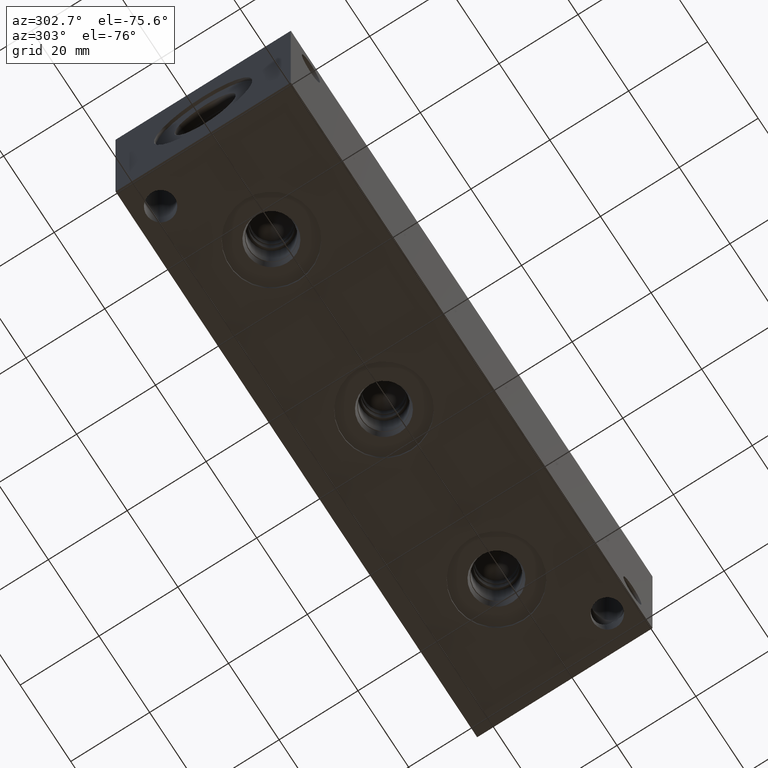
[diagram: clean part render]
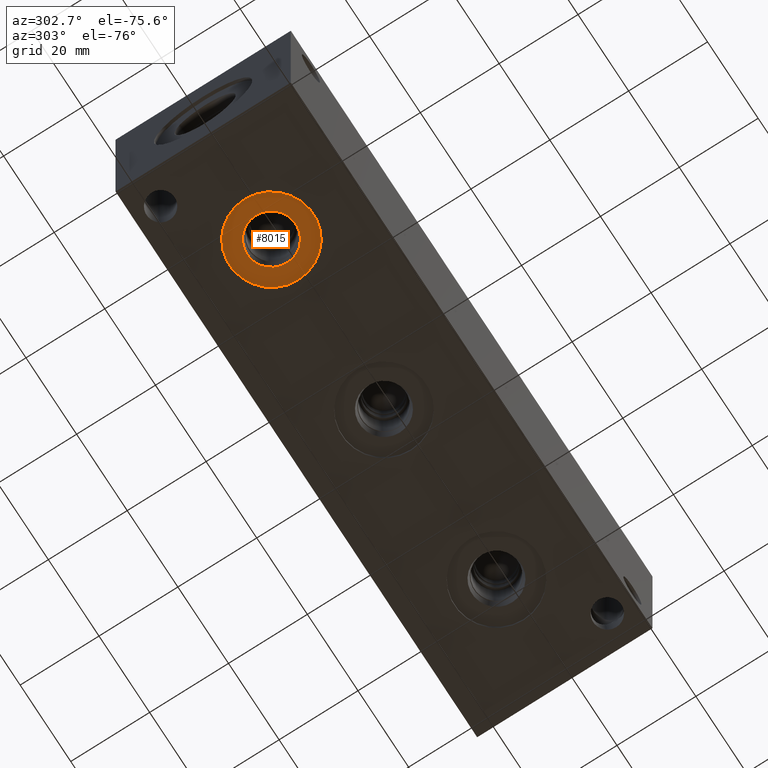
[diagram: same view with one face highlighted and labeled with its STEP entity id]
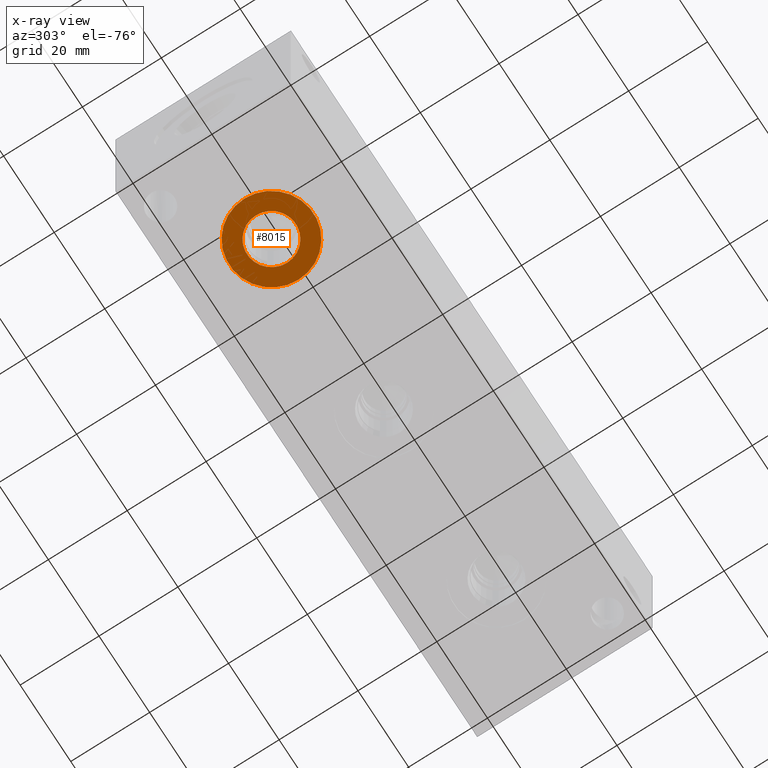
[diagram: x-ray of the same camera — body ghosted, the highlighted face saturated]
A machine part, auxiliary view. The second image highlights one B-rep face of the part: STEP entity #8015.
The next image is the same camera in x-ray: the body ghosted, the highlighted face saturated — about 0% of this face is hidden behind the body in this view.
In plain terms, the highlighted planar face has unit normal (0, 0, 1).
Its self-contained STEP definition (entity closure, byte-faithful):
#151=CIRCLE('',#8399,10.6426);
#152=CIRCLE('',#8400,10.6426);
#153=CIRCLE('',#8402,6.1976);
#154=CIRCLE('',#8403,6.1976);
#585=FACE_BOUND('',#1405,.T.);
#952=FACE_OUTER_BOUND('',#1404,.T.);
#1404=EDGE_LOOP('',(#6758,#6759));
#1405=EDGE_LOOP('',(#6760,#6761));
#3653=VERTEX_POINT('',#13514);
#3654=VERTEX_POINT('',#13516);
#3655=VERTEX_POINT('',#13520);
#3656=VERTEX_POINT('',#13521);
#4716=EDGE_CURVE('',#3653,#3654,#151,.T.);
#4717=EDGE_CURVE('',#3654,#3653,#152,.T.);
#4718=EDGE_CURVE('',#3655,#3656,#153,.T.);
#4719=EDGE_CURVE('',#3656,#3655,#154,.T.);
#6758=ORIENTED_EDGE('',*,*,#4717,.F.);
#6759=ORIENTED_EDGE('',*,*,#4716,.F.);
#6760=ORIENTED_EDGE('',*,*,#4718,.T.);
#6761=ORIENTED_EDGE('',*,*,#4719,.T.);
#7343=PLANE('',#8401);
#8015=ADVANCED_FACE('',(#952,#585),#7343,.F.);
#8399=AXIS2_PLACEMENT_3D('',#13517,#9877,#9878);
#8400=AXIS2_PLACEMENT_3D('',#13518,#9879,#9880);
#8401=AXIS2_PLACEMENT_3D('',#13519,#9881,#9882);
#8402=AXIS2_PLACEMENT_3D('',#13522,#9883,#9884);
#8403=AXIS2_PLACEMENT_3D('',#13523,#9885,#9886);
#9877=DIRECTION('center_axis',(0.,0.,1.));
#9878=DIRECTION('ref_axis',(1.,0.,0.));
#9879=DIRECTION('center_axis',(0.,0.,1.));
#9880=DIRECTION('ref_axis',(1.,0.,0.));
#9881=DIRECTION('center_axis',(0.,0.,1.));
#9882=DIRECTION('ref_axis',(1.,0.,0.));
#9883=DIRECTION('center_axis',(0.,0.,1.));
#9884=DIRECTION('ref_axis',(1.,0.,0.));
#9885=DIRECTION('center_axis',(0.,0.,1.));
#9886=DIRECTION('ref_axis',(1.,0.,0.));
#13514=CARTESIAN_POINT('',(16.3322,22.225,0.7874));
#13516=CARTESIAN_POINT('',(37.6174,22.225,0.7874));
#13517=CARTESIAN_POINT('Origin',(26.9748,22.225,0.7874));
#13518=CARTESIAN_POINT('Origin',(26.9748,22.225,0.7874));
#13519=CARTESIAN_POINT('Origin',(33.1724,22.225,0.7874));
#13520=CARTESIAN_POINT('',(33.1724,22.225,0.7874));
#13521=CARTESIAN_POINT('',(20.7772,22.225,0.787399999999999));
#13522=CARTESIAN_POINT('Origin',(26.9748,22.225,0.7874));
#13523=CARTESIAN_POINT('Origin',(26.9748,22.225,0.7874));